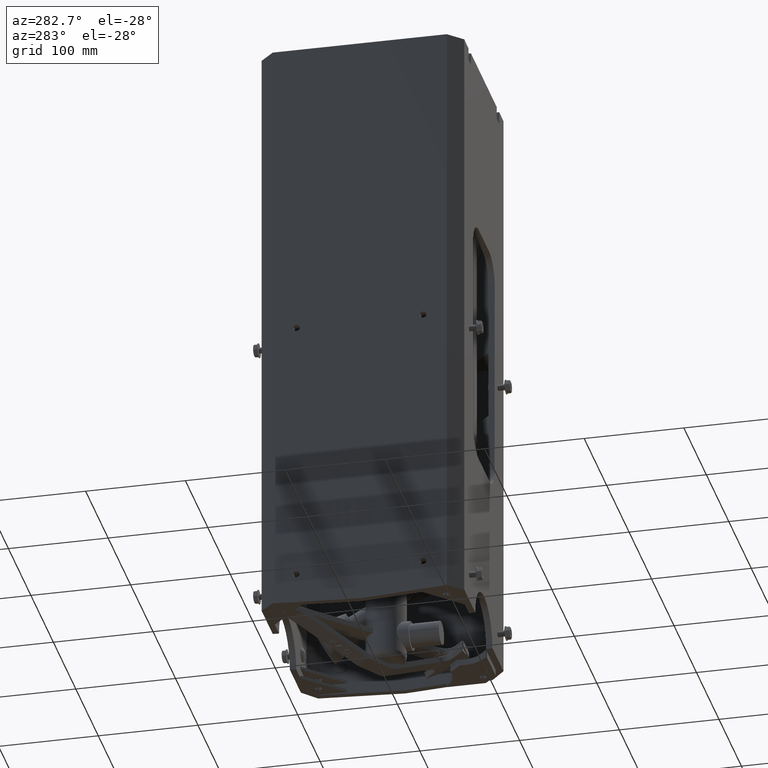
[diagram: clean part render]
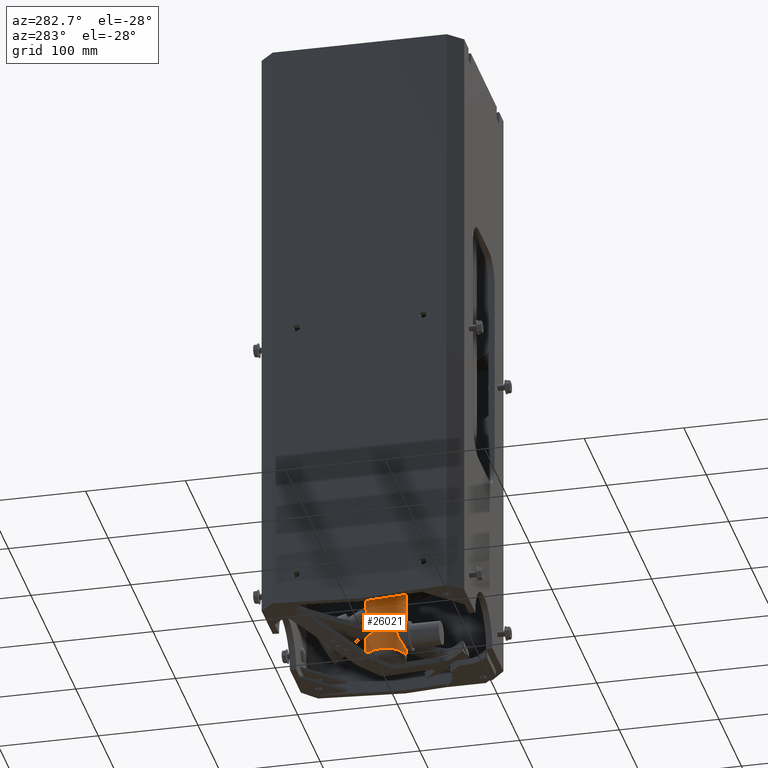
[diagram: same view with one face highlighted and labeled with its STEP entity id]
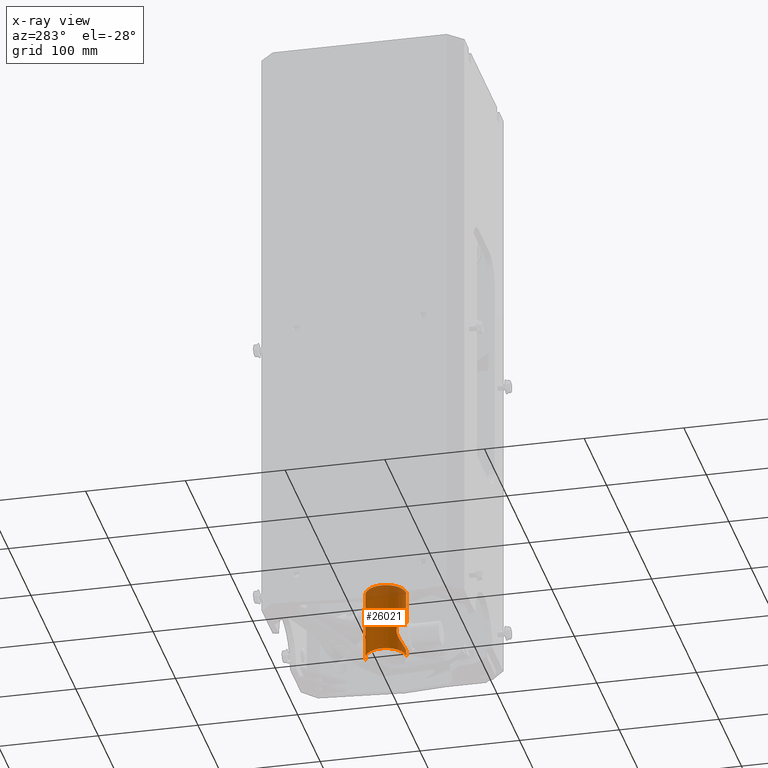
[diagram: x-ray of the same camera — body ghosted, the highlighted face saturated]
A machine part, auxiliary view. The second image highlights one B-rep face of the part: STEP entity #26021.
The next image is the same camera in x-ray: the body ghosted, the highlighted face saturated — about 18% of this face is hidden behind the body in this view.
In plain terms, the highlighted cylindrical surface (edge-blend (fillet) strip) has radius 20.2761 mm, axis along (-0, 0, 1).
Its self-contained STEP definition (entity closure, byte-faithful):
#117 = VERTEX_POINT ( 'NONE', #17905 ) ;
#1047 = CARTESIAN_POINT ( 'NONE',  ( 0.7982701456516280200, 24.50000000000000400, -1.031808967145039500E-015 ) ) ;
#1242 = CARTESIAN_POINT ( 'NONE',  ( 0.7982701456516282400, 22.92888705614958400, -1.092739197465705300E-015 ) ) ;
#1328 = CARTESIAN_POINT ( 'NONE',  ( 0.7417860892173976400, 22.74939955073025300, 0.2950743477319577900 ) ) ;
#1424 = CARTESIAN_POINT ( 'NONE',  ( 0.6877450006226261100, 22.41298642736016000, 0.4052678635592959500 ) ) ;
#1535 = CARTESIAN_POINT ( 'NONE',  ( 0.7444455362047508500, 22.09983800816139900, 0.2888854147799240800 ) ) ;
#1633 = CARTESIAN_POINT ( 'NONE',  ( -0.7982701456516371200, 24.00000000000000400, -1.038249084691484200E-015 ) ) ;
#1881 = DIRECTION ( 'NONE',  ( 1.921562119112001500E-016, -1.000000000000000000, 3.532089044115298900E-017 ) ) ;
#1893 = CARTESIAN_POINT ( 'NONE',  ( -0.7829618590043839800, 23.97887604076051800, 0.1567440372034709400 ) ) ;
#2003 = AXIS2_PLACEMENT_3D ( 'NONE', #17577, #3312, #19989 ) ;
#2008 = CARTESIAN_POINT ( 'NONE',  ( -0.6271391243113073600, 23.72714379056977700, 0.4940609706024015100 ) ) ;
#2182 = CARTESIAN_POINT ( 'NONE',  ( -0.5843407492731563800, 23.20595059553570700, 0.5439476550141181300 ) ) ;
#2287 = CARTESIAN_POINT ( 'NONE',  ( -0.7830671316058806000, 22.85474899528077200, 0.1562230343059433900 ) ) ;
#2788 = CARTESIAN_POINT ( 'NONE',  ( -0.7982701456516372300, 24.25000000000000400, -9.985130829467810000E-016 ) ) ;
#2849 = DIRECTION ( 'NONE',  ( 1.921562119112001500E-016, -1.000000000000000000, 3.532089044115298900E-017 ) ) ;
#2960 = EDGE_CURVE ( 'NONE', #25846, #18179, #26315, .T. ) ;
#3312 = DIRECTION ( 'NONE',  ( -1.921562119112001300E-016, 1.000000000000000000, -3.532089044115298900E-017 ) ) ;
#3470 = DIRECTION ( 'NONE',  ( 1.921562119112001500E-016, -1.000000000000000000, 3.532089044115298900E-017 ) ) ;
#3610 = EDGE_CURVE ( 'NONE', #19172, #26938, #7357, .T. ) ;
#3639 = CARTESIAN_POINT ( 'NONE',  ( 0.7966398042957793000, 22.92426595587139800, 0.05812445863797922900 ) ) ;
#3690 = LINE ( 'NONE', #5905, #21962 ) ;
#3742 = CARTESIAN_POINT ( 'NONE',  ( 0.7322407953105316600, 22.71323665290440300, 0.3180008311418521200 ) ) ;
#3846 = CARTESIAN_POINT ( 'NONE',  ( 0.6880368639538044800, 22.36900414019588400, 0.4047745329591407900 ) ) ;
#3945 = CARTESIAN_POINT ( 'NONE',  ( 0.7636524857254389800, 22.05746241079652100, 0.2328515813190695800 ) ) ;
#4282 = CARTESIAN_POINT ( 'NONE',  ( -4.937686950763526400E-015, 24.50000000000000400, -1.092739197465705300E-015 ) ) ;
#4292 = CARTESIAN_POINT ( 'NONE',  ( -0.7698225557925718600, 23.96043231745909100, 0.2120102543277075900 ) ) ;
#4390 = CARTESIAN_POINT ( 'NONE',  ( -0.6046389088339958500, 23.67877628174067400, 0.5213258748634058700 ) ) ;
#4465 = VECTOR ( 'NONE', #5398, 39.37007874015748100 ) ;
#4571 = CARTESIAN_POINT ( 'NONE',  ( -0.6193175522621499100, 23.12186939962978700, 0.5043364479223998400 ) ) ;
#4670 = CARTESIAN_POINT ( 'NONE',  ( -0.7923415219095465400, 22.84190802896363700, 0.09902170013524641500 ) ) ;
#4694 = CARTESIAN_POINT ( 'NONE',  ( 0.7982701456516279000, 21.50000000000000400, -9.744125201781659400E-016 ) ) ;
#4913 = VECTOR ( 'NONE', #2849, 39.37007874015748100 ) ;
#5398 = DIRECTION ( 'NONE',  ( 1.921562119112001500E-016, -1.000000000000000000, 3.532089044115298900E-017 ) ) ;
#5905 = CARTESIAN_POINT ( 'NONE',  ( -0.7982701456516379000, 24.50000000000000400, -1.055909529913654600E-015 ) ) ;
#6014 = CARTESIAN_POINT ( 'NONE',  ( 0.7902829997540047300, 22.90585946477156300, 0.1134165106698383200 ) ) ;
#6053 = CARTESIAN_POINT ( 'NONE',  ( -4.889647897785727100E-015, 24.25000000000000400, -1.092739197465705300E-015 ) ) ;
#6116 = CARTESIAN_POINT ( 'NONE',  ( 0.7201296363319030800, 22.66325574350418400, 0.3447577831176789100 ) ) ;
#6214 = CARTESIAN_POINT ( 'NONE',  ( 0.6930128906721773100, 22.29699227417168900, 0.3962933975204899800 ) ) ;
#6326 = CARTESIAN_POINT ( 'NONE',  ( 0.7740522718296046800, 22.03663387036033300, 0.1955670763728161200 ) ) ;
#6669 = CARTESIAN_POINT ( 'NONE',  ( -0.7533550993497011300, 23.93686257876881700, 0.2645930757040881300 ) ) ;
#6764 = CARTESIAN_POINT ( 'NONE',  ( 0.7982701456516293500, 21.99287591080645400, -1.082686380296084100E-015 ) ) ;
#6777 = CARTESIAN_POINT ( 'NONE',  ( -0.5774357198306381300, 23.60986297579457700, 0.5515403770492481900 ) ) ;
#6949 = CARTESIAN_POINT ( 'NONE',  ( -0.6668261222641784800, 23.03234088089883300, 0.4398704197516443700 ) ) ;
#7055 = CARTESIAN_POINT ( 'NONE',  ( -0.7967606118325872800, 22.83583949164029300, 0.05005306451709665100 ) ) ;
#7357 = CIRCLE ( 'NONE', #22585, 0.7982701456516330100 ) ;
#7486 = ORIENTED_EDGE ( 'NONE', *, *, #14528, .T. ) ;
#7754 = CARTESIAN_POINT ( 'NONE',  ( 0.7982701456516273500, 24.25000000000000400, -9.744125201781661400E-016 ) ) ;
#7784 = AXIS2_PLACEMENT_3D ( 'NONE', #4282, #1881, #20951 ) ;
#8409 = CARTESIAN_POINT ( 'NONE',  ( 0.7837373063556681800, 22.88654666384412900, 0.1521340607411527400 ) ) ;
#8439 = DIRECTION ( 'NONE',  ( -1.000000000000000000, 0.0000000000000000000, -7.632783294297940100E-017 ) ) ;
#8473 = FACE_OUTER_BOUND ( 'NONE', #11765, .T. ) ;
#8506 = CARTESIAN_POINT ( 'NONE',  ( 0.7068694175556544700, 22.59714863796097000, 0.3709466279224965500 ) ) ;
#8624 = CARTESIAN_POINT ( 'NONE',  ( 0.7021085012388874600, 22.24144509822480100, 0.3798886997692876300 ) ) ;
#8648 = CARTESIAN_POINT ( 'NONE',  ( -0.5451725418468107400, 23.41688583874599100, 0.5831141612540117200 ) ) ;
#8729 = CARTESIAN_POINT ( 'NONE',  ( 0.7829312940911754600, 22.01990403283291200, 0.1563205201087664900 ) ) ;
#8974 = CARTESIAN_POINT ( 'NONE',  ( -0.7982701456516366800, 24.00000000000000700, 0.03987154211505122800 ) ) ;
#9087 = CARTESIAN_POINT ( 'NONE',  ( -0.7341185096255600200, 23.90859639124055700, 0.3139915114301335400 ) ) ;
#9187 = CARTESIAN_POINT ( 'NONE',  ( -0.5537419478293377200, 23.51573847362112700, 0.5750109859595427000 ) ) ;
#9263 = CARTESIAN_POINT ( 'NONE',  ( -0.5451725418468107400, 23.41688583874599100, 0.5831141612540117200 ) ) ;
#9362 = CARTESIAN_POINT ( 'NONE',  ( -0.6979883351207822900, 22.98092841576679000, 0.3876948550108322800 ) ) ;
#9464 = CARTESIAN_POINT ( 'NONE',  ( -0.7980783288051791500, 22.83403419086312200, 0.02015338586497681500 ) ) ;
#9580 = EDGE_CURVE ( 'NONE', #18179, #117, #3690, .T. ) ;
#10794 = DIRECTION ( 'NONE',  ( 1.921562119112001500E-016, -1.000000000000000000, 3.532089044115298900E-017 ) ) ;
#10798 = CARTESIAN_POINT ( 'NONE',  ( 0.7758678659365255700, 22.86273971743182900, 0.1881448540320307400 ) ) ;
#10897 = CARTESIAN_POINT ( 'NONE',  ( 0.7000760386814861600, 22.55587574991009300, 0.3836016730586673800 ) ) ;
#10998 = CARTESIAN_POINT ( 'NONE',  ( 0.7109024143390233500, 22.20207593277104500, 0.3631931150704654200 ) ) ;
#11095 = CARTESIAN_POINT ( 'NONE',  ( 0.7900600475570277400, 22.00707113288893200, 0.1150557804510459200 ) ) ;
#11454 = CARTESIAN_POINT ( 'NONE',  ( -0.7128995480161217600, 23.87633811445771300, 0.3595371845166637200 ) ) ;
#11569 = CARTESIAN_POINT ( 'NONE',  ( -0.5462751608912896900, 23.45671770616294100, 0.5820887587594390000 ) ) ;
#11649 = CARTESIAN_POINT ( 'NONE',  ( -0.5506305397130146800, 23.33709252127308200, 0.5779706737347780600 ) ) ;
#11752 = CARTESIAN_POINT ( 'NONE',  ( -0.7204315826603108200, 22.94585408463649000, 0.3442387226247036200 ) ) ;
#11765 = EDGE_LOOP ( 'NONE', ( #21630, #7486, #12591, #14741, #12613, #28649, #18640, #29332, #27200 ) ) ;
#11849 = CARTESIAN_POINT ( 'NONE',  ( -0.7982701456516369000, 22.83377167749197800, -9.970454930619274400E-016 ) ) ;
#12591 = ORIENTED_EDGE ( 'NONE', *, *, #15530, .T. ) ;
#12613 = ORIENTED_EDGE ( 'NONE', *, *, #9580, .T. ) ;
#13208 = CARTESIAN_POINT ( 'NONE',  ( 0.7670781822465232400, 22.83527726019755400, 0.2212208870369772300 ) ) ;
#13298 = CARTESIAN_POINT ( 'NONE',  ( 0.6927323847800830300, 22.49939669375907400, 0.3967488687692850600 ) ) ;
#13409 = CARTESIAN_POINT ( 'NONE',  ( 0.7211793194214475300, 22.16534154311095200, 0.3423677561658534100 ) ) ;
#13437 = CARTESIAN_POINT ( 'NONE',  ( 0.7982701456516282400, 22.92888705614958400, -1.092739197465705300E-015 ) ) ;
#13514 = CARTESIAN_POINT ( 'NONE',  ( 0.7966715750377130200, 21.99555722400493400, 0.05806494359982398300 ) ) ;
#13880 = CARTESIAN_POINT ( 'NONE',  ( -0.6900971890875825500, 23.84012410436858800, 0.4015360023103282100 ) ) ;
#13936 = VECTOR ( 'NONE', #3470, 39.37007874015748100 ) ;
#13955 = CARTESIAN_POINT ( 'NONE',  ( -0.5463036822304646600, 23.37662797656664900, 0.5820621768707482400 ) ) ;
#13986 = CARTESIAN_POINT ( 'NONE',  ( -0.5451725418468107400, 23.41688583874599100, 0.5831141612540117200 ) ) ;
#14056 = CARTESIAN_POINT ( 'NONE',  ( -0.5619309769141280800, 23.27939828419622300, 0.5670105830208501700 ) ) ;
#14152 = CARTESIAN_POINT ( 'NONE',  ( -0.7539124844101774400, 22.89603294279268700, 0.2649831628759019000 ) ) ;
#14528 = EDGE_CURVE ( 'NONE', #26938, #24850, #23984, .T. ) ;
#14741 = ORIENTED_EDGE ( 'NONE', *, *, #2960, .T. ) ;
#15530 = EDGE_CURVE ( 'NONE', #24850, #25846, #23357, .T. ) ;
#15594 = CARTESIAN_POINT ( 'NONE',  ( 0.7514384996983167800, 22.78395776903508000, 0.2699933262854017400 ) ) ;
#15634 = CIRCLE ( 'NONE', #2003, 0.7982701456516330100 ) ;
#15657 = VERTEX_POINT ( 'NONE', #4694 ) ;
#15696 = CARTESIAN_POINT ( 'NONE',  ( 0.6881142143037285400, 22.42751553476341900, 0.4046428682675416400 ) ) ;
#15733 = B_SPLINE_CURVE_WITH_KNOTS ( 'NONE', 3,
 ( #1242, #17903, #3639, #20301, #6014, #22696, #8409, #25133, #10798, #27529, #13208, #29942, #15594, #1328, #18010, #3742, #20399, #6116, #22812, #8506, #25235, #10897, #27631, #13298, #30051, #15696, #1424, #18114, #3846, #20501, #6214, #22923, #8624, #25334, #10998, #27745, #13409, #30143, #15805, #1535, #18214, #3945, #20619, #6326, #23019, #8729, #25450, #11095, #27847, #13514, #30257, #15906 ),
 .UNSPECIFIED., .F., .F.,
 ( 4, 2, 2, 2, 2, 2, 2, 2, 2, 2, 2, 2, 2, 2, 2, 2, 2, 2, 2, 2, 2, 2, 2, 2, 2, 4 ),
 ( 2.161693444694372200E-019, 0.002208787117867667300, 0.003313180676801499600, 0.004417574235735331100, 0.005521967794669162100, 0.006626361353602994000, 0.008835148471470880700, 0.009939542030404958900, 0.01104393558933903400, 0.01325272270720718300, 0.01435711626614126000, 0.01546150982507533400, 0.01767029694294348200, 0.01877469050187739000, 0.01987908406081130200, 0.02208787117867911500, 0.02319226473761287100, 0.02429665829654661900, 0.02540105185548036800, 0.02650544541441412000, 0.02871423253228186400, 0.02981862609121573000, 0.03092301965014960000, 0.03202741320908347000, 0.03313180676801733700, 0.03534059388588502200 ),
 .UNSPECIFIED. ) ;
#15805 = CARTESIAN_POINT ( 'NONE',  ( 0.7326118346699466200, 22.13116869508104800, 0.3172062477198002200 ) ) ;
#15906 = CARTESIAN_POINT ( 'NONE',  ( 0.7982701456516293500, 21.99287591080645400, -1.082686380296084100E-015 ) ) ;
#16163 = CARTESIAN_POINT ( 'NONE',  ( -0.7865690744962528000, 23.98388277727591200, 0.1375898623735809500 ) ) ;
#16253 = CARTESIAN_POINT ( 'NONE',  ( -0.6504614547648844800, 23.77264624547745000, 0.4634577814723398500 ) ) ;
#16321 = EDGE_CURVE ( 'NONE', #117, #15657, #15634, .T. ) ;
#16441 = CARTESIAN_POINT ( 'NONE',  ( -0.5781216932021410200, 23.22370767701539100, 0.5505228028044565300 ) ) ;
#16546 = CARTESIAN_POINT ( 'NONE',  ( -0.7747028919908449700, 22.86646030423787200, 0.1934817774113067600 ) ) ;
#17083 = CARTESIAN_POINT ( 'NONE',  ( -0.7982701456516379000, 24.50000000000000400, -1.055909529913654600E-015 ) ) ;
#17577 = CARTESIAN_POINT ( 'NONE',  ( -4.361218315029926800E-015, 21.50000000000000400, -1.092739197465705300E-015 ) ) ;
#17876 = LINE ( 'NONE', #26919, #4465 ) ;
#17903 = CARTESIAN_POINT ( 'NONE',  ( 0.7982701456516282400, 22.92888705614958100, 0.02954573203283641900 ) ) ;
#17905 = CARTESIAN_POINT ( 'NONE',  ( -0.7982701456516366800, 21.50000000000000400, -9.985130829467812000E-016 ) ) ;
#18010 = CARTESIAN_POINT ( 'NONE',  ( 0.7385557312620872900, 22.73746965843246300, 0.3030454466640802900 ) ) ;
#18114 = CARTESIAN_POINT ( 'NONE',  ( 0.6877034207933941900, 22.38373839952132000, 0.4053384168129097200 ) ) ;
#18179 = VERTEX_POINT ( 'NONE', #30797 ) ;
#18214 = CARTESIAN_POINT ( 'NONE',  ( 0.7524080267359712900, 22.08149339192311800, 0.2677991719498050700 ) ) ;
#18573 = CARTESIAN_POINT ( 'NONE',  ( -0.7745957928613123000, 23.96716063993461200, 0.1939054499904478400 ) ) ;
#18640 = ORIENTED_EDGE ( 'NONE', *, *, #24597, .F. ) ;
#18684 = CARTESIAN_POINT ( 'NONE',  ( -0.6194821949485562800, 23.71143054488458900, 0.5035977442560475300 ) ) ;
#18756 = CARTESIAN_POINT ( 'NONE',  ( -0.5451725418468108500, 23.39688320306012800, 0.5831141612540118300 ) ) ;
#18864 = CARTESIAN_POINT ( 'NONE',  ( -0.6042985600688244300, 23.15425622670525700, 0.5219676470899182700 ) ) ;
#18958 = CARTESIAN_POINT ( 'NONE',  ( -0.7866066747872754200, 22.84983693854416800, 0.1373328934367727100 ) ) ;
#19172 = VERTEX_POINT ( 'NONE', #7754 ) ;
#19989 = DIRECTION ( 'NONE',  ( -1.000000000000000000, 0.0000000000000000000, -7.632783294297940100E-017 ) ) ;
#20301 = CARTESIAN_POINT ( 'NONE',  ( 0.7921391670641774200, 22.91125501438653700, 0.09972620870146790800 ) ) ;
#20399 = CARTESIAN_POINT ( 'NONE',  ( 0.7291460524875566000, 22.70089957925470600, 0.3250132439713044900 ) ) ;
#20501 = CARTESIAN_POINT ( 'NONE',  ( 0.6901402406975432100, 22.32545872326429800, 0.4011849531333792100 ) ) ;
#20523 = EDGE_CURVE ( 'NONE', #19172, #25872, #26657, .T. ) ;
#20619 = CARTESIAN_POINT ( 'NONE',  ( 0.7672913439334595500, 22.05002873840213300, 0.2206068775228204000 ) ) ;
#20951 = DIRECTION ( 'NONE',  ( 1.000000000000000000, 0.0000000000000000000, 7.632783294297954900E-017 ) ) ;
#20965 = CARTESIAN_POINT ( 'NONE',  ( -0.7592142123069007800, 23.94530066374921500, 0.2473234626522891900 ) ) ;
#21069 = CARTESIAN_POINT ( 'NONE',  ( -0.5974487799903490700, 23.66180880754630100, 0.5295173027201703900 ) ) ;
#21248 = CARTESIAN_POINT ( 'NONE',  ( -0.6507842049340363300, 23.06051447317286600, 0.4630220317126802500 ) ) ;
#21351 = CARTESIAN_POINT ( 'NONE',  ( -0.7945370838517285000, 22.83889101313344100, 0.07960071237056351400 ) ) ;
#21356 = EDGE_CURVE ( 'NONE', #25872, #30722, #15733, .T. ) ;
#21630 = ORIENTED_EDGE ( 'NONE', *, *, #3610, .T. ) ;
#21962 = VECTOR ( 'NONE', #10794, 39.37007874015748100 ) ;
#22585 = AXIS2_PLACEMENT_3D ( 'NONE', #6053, #22741, #8439 ) ;
#22696 = CARTESIAN_POINT ( 'NONE',  ( 0.7860871125668859000, 22.89351971834172200, 0.1395620867175810000 ) ) ;
#22741 = DIRECTION ( 'NONE',  ( 1.921562119112001300E-016, -1.000000000000000000, 3.532089044115298900E-017 ) ) ;
#22812 = CARTESIAN_POINT ( 'NONE',  ( 0.7144725206945818900, 22.63732330008551200, 0.3562112264183720000 ) ) ;
#22923 = CARTESIAN_POINT ( 'NONE',  ( 0.6995459332243495500, 22.25524883387439700, 0.3845656475522899500 ) ) ;
#23019 = CARTESIAN_POINT ( 'NONE',  ( 0.7771971530238028800, 22.03062283341831700, 0.1827076944358209100 ) ) ;
#23357 = B_SPLINE_CURVE_WITH_KNOTS ( 'NONE', 3,
 ( #25687, #8974, #30509, #16163, #1893, #18573, #4292, #20965, #6669, #23372, #9087, #25796, #11454, #28192, #13880, #30608, #16253, #2008, #18684, #4390, #21069, #6777, #23479, #9187, #25897, #11569, #28288, #13986 ),
 .UNSPECIFIED., .F., .F.,
 ( 4, 2, 2, 2, 2, 2, 2, 2, 2, 2, 2, 2, 2, 4 ),
 ( 0.02414399413712768600, 0.02715537631923884900, 0.02866106741029442900, 0.03016675850135001200, 0.03167244959240559500, 0.03317814068346117100, 0.03468383177451675500, 0.03618952286557233100, 0.03920090504768348300, 0.04070659613873906000, 0.04221228722979464300, 0.04522366941190579500, 0.04672936050296137800, 0.04823505159401695500 ),
 .UNSPECIFIED. ) ;
#23372 = CARTESIAN_POINT ( 'NONE',  ( -0.7407843065304862100, 23.91847660147036300, 0.2979798862757243000 ) ) ;
#23479 = CARTESIAN_POINT ( 'NONE',  ( -0.5659859495995579500, 23.57355807891304500, 0.5630500364797228500 ) ) ;
#23678 = CARTESIAN_POINT ( 'NONE',  ( -0.6902717979332450000, 22.99336515855178600, 0.4012318904743376000 ) ) ;
#23777 = CARTESIAN_POINT ( 'NONE',  ( -0.7973232784880941400, 22.83506848342705500, 0.04013436745841946600 ) ) ;
#23984 = LINE ( 'NONE', #17083, #4913 ) ;
#24597 = EDGE_CURVE ( 'NONE', #30722, #15657, #17876, .T. ) ;
#24850 = VERTEX_POINT ( 'NONE', #1633 ) ;
#25133 = CARTESIAN_POINT ( 'NONE',  ( 0.7786347909052311300, 22.87117872973590200, 0.1763995470606385700 ) ) ;
#25235 = CARTESIAN_POINT ( 'NONE',  ( 0.7044827801714791400, 22.58354267342123100, 0.3754473544336592300 ) ) ;
#25334 = CARTESIAN_POINT ( 'NONE',  ( 0.7077814864758434900, 22.21490268967487600, 0.3692115100133833100 ) ) ;
#25450 = CARTESIAN_POINT ( 'NONE',  ( 0.7855208108497295800, 22.01519637068927100, 0.1427927417027773600 ) ) ;
#25687 = CARTESIAN_POINT ( 'NONE',  ( -0.7982701456516371200, 24.00000000000000400, -1.038249084691484200E-015 ) ) ;
#25796 = CARTESIAN_POINT ( 'NONE',  ( -0.7201764040589985200, 23.88752724600102800, 0.3447703619246922900 ) ) ;
#25846 = VERTEX_POINT ( 'NONE', #8648 ) ;
#25872 = VERTEX_POINT ( 'NONE', #13437 ) ;
#25897 = CARTESIAN_POINT ( 'NONE',  ( -0.5505492471217164900, 23.49609757879382600, 0.5780479227318614500 ) ) ;
#26021 = ADVANCED_FACE ( 'NONE', ( #8473 ), #26816, .T. ) ;
#26072 = CARTESIAN_POINT ( 'NONE',  ( -0.7130691221610069300, 22.95716991378204600, 0.3592039025220661900 ) ) ;
#26174 = CARTESIAN_POINT ( 'NONE',  ( -0.7982701456516372300, 22.83377167749198100, 0.01004995720181951900 ) ) ;
#26315 = B_SPLINE_CURVE_WITH_KNOTS ( 'NONE', 3,
 ( #9263, #18756, #13955, #11649, #28365, #14056, #30801, #16441, #2182, #18864, #4571, #21248, #6949, #23678, #9362, #26072, #11752, #28478, #14152, #30888, #16546, #2287, #18958, #4670, #21351, #7055, #23777, #9464, #26174, #11849 ),
 .UNSPECIFIED., .F., .F.,
 ( 4, 2, 2, 2, 2, 2, 2, 2, 2, 2, 2, 2, 2, 2, 4 ),
 ( 0.04823505159401695500, 0.04974141658468842600, 0.05124778157535989100, 0.05275414656603136200, 0.05426051155670282700, 0.05727324153804547900, 0.06028597151938813000, 0.06179233651005945600, 0.06329870150073077500, 0.06631143148207344100, 0.06781779647274482900, 0.06932416146341621700, 0.07083052645408760600, 0.07158370894942330000, 0.07233689144475899400 ),
 .UNSPECIFIED. ) ;
#26657 = LINE ( 'NONE', #1047, #13936 ) ;
#26816 = CYLINDRICAL_SURFACE ( 'NONE', #7784, 0.7982701456516330100 ) ;
#26919 = CARTESIAN_POINT ( 'NONE',  ( 0.7982701456516280200, 24.50000000000000400, -1.031808967145039500E-015 ) ) ;
#26938 = VERTEX_POINT ( 'NONE', #2788 ) ;
#27200 = ORIENTED_EDGE ( 'NONE', *, *, #20523, .F. ) ;
#27529 = CARTESIAN_POINT ( 'NONE',  ( 0.7700814504588100500, 22.84476323452988200, 0.2105801300001677000 ) ) ;
#27631 = CARTESIAN_POINT ( 'NONE',  ( 0.6980529127076221500, 22.54177829194118500, 0.3872602556261232100 ) ) ;
#27745 = CARTESIAN_POINT ( 'NONE',  ( 0.7176013023301870400, 22.17729540353382600, 0.3497711429515878400 ) ) ;
#27847 = CARTESIAN_POINT ( 'NONE',  ( 0.7920082536028164600, 22.00365687555377600, 0.1008148269903811900 ) ) ;
#28192 = CARTESIAN_POINT ( 'NONE',  ( -0.6978738316142875100, 23.85265930391695100, 0.3878980120595534300 ) ) ;
#28288 = CARTESIAN_POINT ( 'NONE',  ( -0.5451725418468106300, 23.43687952589110800, 0.5831141612540116100 ) ) ;
#28365 = CARTESIAN_POINT ( 'NONE',  ( -0.5538135798052639100, 23.31765940065042000, 0.5749416865183709600 ) ) ;
#28478 = CARTESIAN_POINT ( 'NONE',  ( -0.7413561816892730900, 22.91424751786291500, 0.2979482997937075200 ) ) ;
#28649 = ORIENTED_EDGE ( 'NONE', *, *, #16321, .T. ) ;
#29332 = ORIENTED_EDGE ( 'NONE', *, *, #21356, .F. ) ;
#29942 = CARTESIAN_POINT ( 'NONE',  ( 0.7578600413210615500, 22.80551777096944500, 0.2516603973871451800 ) ) ;
#30051 = CARTESIAN_POINT ( 'NONE',  ( 0.6901471029655771300, 22.47084729616362300, 0.4011725202686368700 ) ) ;
#30143 = CARTESIAN_POINT ( 'NONE',  ( 0.7286724711744427800, 22.14230724154124300, 0.3261161157866230800 ) ) ;
#30257 = CARTESIAN_POINT ( 'NONE',  ( 0.7982701456516284600, 21.99287591080645400, 0.02921044307250546600 ) ) ;
#30509 = CARTESIAN_POINT ( 'NONE',  ( -0.7952995937885672900, 23.99595338439593200, 0.07924895287115228700 ) ) ;
#30608 = CARTESIAN_POINT ( 'NONE',  ( -0.6664695106404402400, 23.80082190916267800, 0.4404246600979659400 ) ) ;
#30722 = VERTEX_POINT ( 'NONE', #6764 ) ;
#30797 = CARTESIAN_POINT ( 'NONE',  ( -0.7982701456516369000, 22.83377167749197800, -9.970454930619274400E-016 ) ) ;
#30801 = CARTESIAN_POINT ( 'NONE',  ( -0.5669001685964489800, 23.26046042145907200, 0.5620713899531821800 ) ) ;
#30888 = CARTESIAN_POINT ( 'NONE',  ( -0.7698514891029698500, 22.87329829634400400, 0.2119083091675838000 ) ) ;